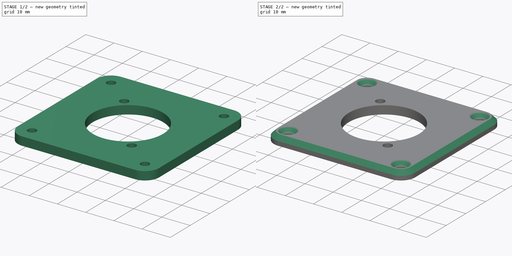
[diagram: build sequence overview — one tinted view per stage of 2, left to right]
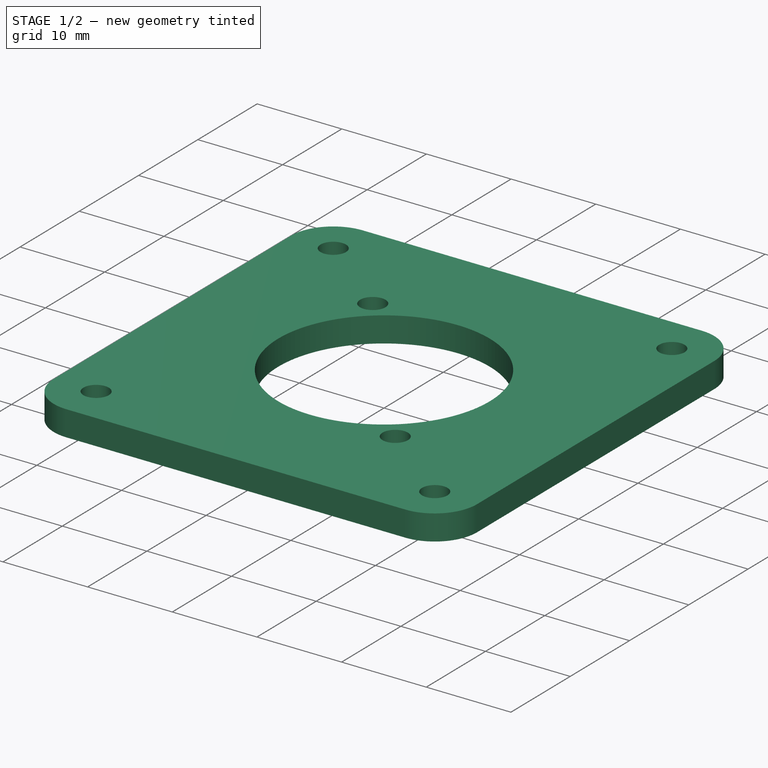
[diagram: stage 1 of 2 — iso view after this stage's code; geometry added in this stage tinted green]
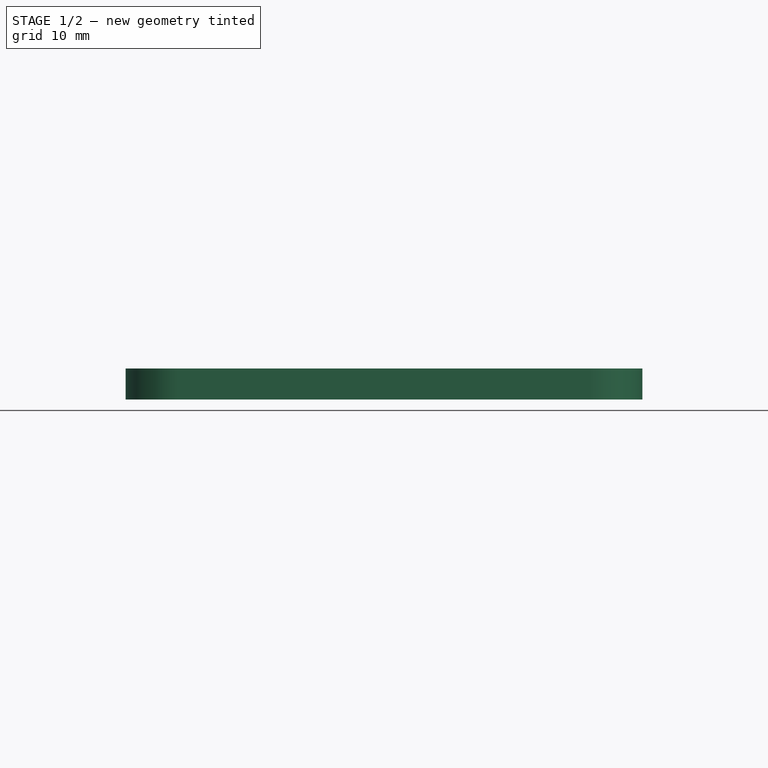
[diagram: stage 1 of 2 — front view after this stage's code; geometry added in this stage tinted green]
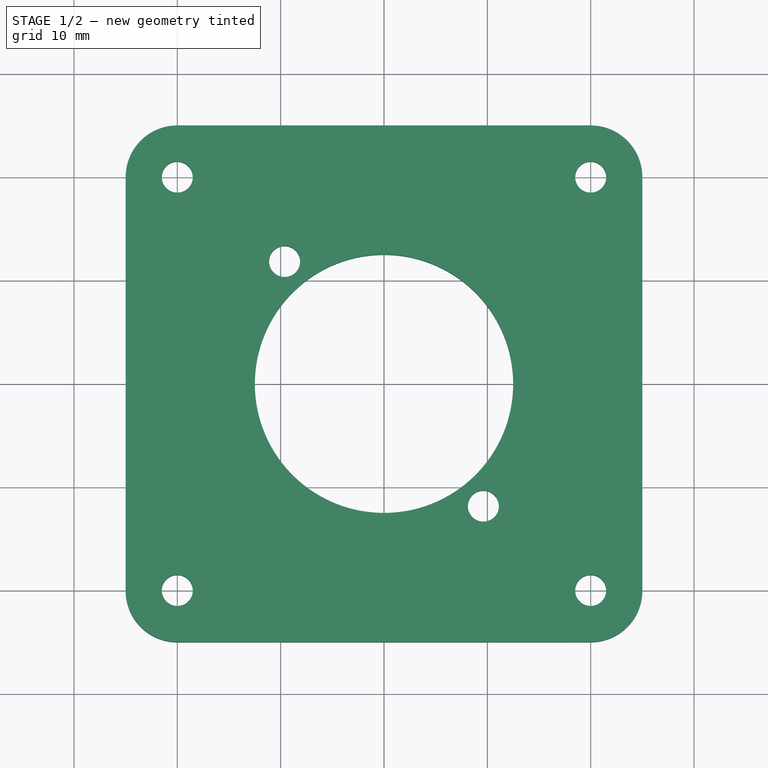
[diagram: stage 1 of 2 — top view after this stage's code; geometry added in this stage tinted green]
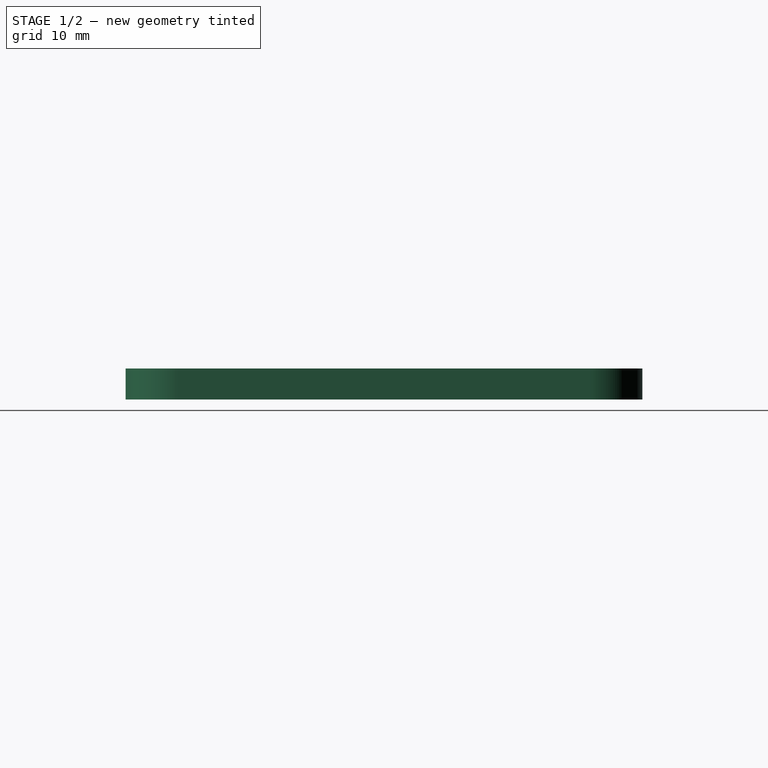
[diagram: stage 1 of 2 — right view after this stage's code; geometry added in this stage tinted green]
FCSTD DOCUMENT  (FreeCAD 0.19R23141 (Git))
Label: ethernet_panel
License: All rights reserved
LicenseURL: http://en.wikipedia.org/wiki/All_rights_reserved
objects: Sketcher::SketchObject×1, PartDesign::Pad×1, PartDesign::Chamfer×1, PartDesign::Body×1
note: 6 computed .brp shape members not serialized (recipe doc carries the construction recipe); baked Part::Feature solids carry a one-line shape summary decoded from their .brp

FEATURE [Sketcher::SketchObject] Sketch
  MapMode = 5
  Support = -> [XY_Plane]
  sketch-geometry (29):
    g0: Circle [constr] CenterX=0 CenterY=0 CenterZ=0 NormalX=0 NormalY=0 NormalZ=1 AngleXU=0 Radius=20
    g1: LineSegment [constr] StartX=-13 StartY=16 StartZ=0 EndX=13 EndY=16 EndZ=0
    g2: LineSegment [constr] StartX=13 StartY=16 StartZ=0 EndX=13 EndY=-16 EndZ=0
    g3: LineSegment [constr] StartX=13 StartY=-16 StartZ=0 EndX=-13 EndY=-16 EndZ=0
    g4: LineSegment [constr] StartX=-13 StartY=-16 StartZ=0 EndX=-13 EndY=16 EndZ=0
    g5: LineSegment [constr] StartX=-13 StartY=16 StartZ=0 EndX=-1.8e-15 EndY=0 EndZ=0
    g6: LineSegment [constr] StartX=13 StartY=16 StartZ=0 EndX=0 EndY=0 EndZ=0
    g7: LineSegment [constr] StartX=0 StartY=0 StartZ=0 EndX=-13 EndY=-16 EndZ=0
    g8: LineSegment [constr] StartX=0 StartY=0 StartZ=0 EndX=13 EndY=-16 EndZ=0
    g9: LineSegment [constr] StartX=0 StartY=0 StartZ=0 EndX=9.61654 EndY=-11.8357 EndZ=0
    g10: LineSegment [constr] StartX=0 StartY=0 StartZ=0 EndX=-9.61654 EndY=11.8357 EndZ=0
    g11: Circle CenterX=-9.61654 CenterY=11.8357 CenterZ=0 NormalX=0 NormalY=0 NormalZ=1 AngleXU=0 Radius=1.5
    g12: Circle CenterX=9.61654 CenterY=-11.8357 CenterZ=0 NormalX=0 NormalY=0 NormalZ=1 AngleXU=0 Radius=1.5
    g13: LineSegment StartX=-20 StartY=25 StartZ=0 EndX=20 EndY=25 EndZ=0
    g14: LineSegment StartX=25 StartY=20 StartZ=0 EndX=25 EndY=-20 EndZ=0
    g15: LineSegment StartX=20 StartY=-25 StartZ=0 EndX=-20 EndY=-25 EndZ=0
    g16: LineSegment StartX=-25 StartY=-20 StartZ=0 EndX=-25 EndY=20 EndZ=0
    g17: ArcOfCircle CenterX=-20 CenterY=20 CenterZ=0 NormalX=0 NormalY=0 NormalZ=1 AngleXU=0 Radius=5 StartAngle=1.5708 EndAngle=3.14159
    g18: ArcOfCircle CenterX=20 CenterY=20 CenterZ=0 NormalX=0 NormalY=0 NormalZ=1 AngleXU=0 Radius=5 StartAngle=0 EndAngle=1.5708
    g19: ArcOfCircle CenterX=20 CenterY=-20 CenterZ=0 NormalX=0 NormalY=0 NormalZ=1 AngleXU=0 Radius=5 StartAngle=4.71239 EndAngle=6.28319
    g20: ArcOfCircle CenterX=-20 CenterY=-20 CenterZ=0 NormalX=0 NormalY=0 NormalZ=1 AngleXU=0 Radius=5 StartAngle=3.14159 EndAngle=4.71239
    g21: Circle CenterX=-20 CenterY=20 CenterZ=0 NormalX=0 NormalY=0 NormalZ=1 AngleXU=0 Radius=1.5
    g22: Circle CenterX=20 CenterY=20 CenterZ=0 NormalX=0 NormalY=0 NormalZ=1 AngleXU=0 Radius=1.5
    g23: Circle CenterX=20 CenterY=-20 CenterZ=0 NormalX=0 NormalY=0 NormalZ=1 AngleXU=0 Radius=1.5
    g24: Circle CenterX=-20 CenterY=-20 CenterZ=0 NormalX=0 NormalY=0 NormalZ=1 AngleXU=0 Radius=1.5
    g25: LineSegment [constr] StartX=-20 StartY=20 StartZ=0 EndX=0 EndY=0 EndZ=0
    g26: LineSegment [constr] StartX=0 StartY=0 StartZ=0 EndX=20 EndY=20 EndZ=0
    g27: LineSegment [constr] StartX=0 StartY=0 StartZ=0 EndX=-20 EndY=-20 EndZ=0
    g28: Circle CenterX=0 CenterY=0 CenterZ=0 NormalX=0 NormalY=0 NormalZ=1 AngleXU=0 Radius=12.5
  constraints (68):
    c: Coincident(g0,g-1)
    c: Diameter(g0) = 40
    c: Coincident(g1,g2)
    c: Coincident(g2,g3)
    c: Coincident(g3,g4)
    c: Coincident(g4,g1)
    c: Horizontal(g1)
    c: Horizontal(g3)
    c: Vertical(g2)
    c: Vertical(g4)
    c: DistanceX(g1,g1) = 26
    c: DistanceY(g4,g4) = 32
    c: Coincident(g5,g1)
    c: Coincident(g5,g-1)
    c: Coincident(g6,g1)
    c: Coincident(g6,g-1)
    c: Coincident(g7,g-1)
    c: Coincident(g7,g3)
    c: Equal(g7,g5)
    c: Equal(g5,g6)
    c: Coincident(g8,g-1)
    c: Coincident(g8,g2)
    c: Coincident(g9,g-1)
    c: PointOnObject(g9,g8)
    c: Coincident(g10,g-1)
    c: PointOnObject(g10,g5)
    c: Equal(g9,g10)
    c: Distance(g10,g9) = 30.5
    c: Coincident(g11,g10)
    c: Coincident(g12,g9)
    c: Diameter(g12) = 3
    c: Equal(g12,g11)
    c: Horizontal(g13)
    c: Horizontal(g15)
    c: Vertical(g14)
    c: Vertical(g16)
    c: Tangent(g16,g17) = 1.5708
    c: Tangent(g13,g17) = 1.5708
    c: Tangent(g13,g18) = 1.5708
    c: Tangent(g14,g18) = 1.5708
    c: Tangent(g14,g19) = 1.5708
    c: Tangent(g15,g19) = 1.5708
    c: Tangent(g15,g20) = 1.5708
    c: Tangent(g16,g20) = 1.5708
    c: Equal(g13,g16)
    c: Equal(g17,g18)
    c: Equal(g18,g19)
    c: Equal(g19,g20)
    c: Radius(g17) = 5
    c: Coincident(g21,g17)
    c: Coincident(g22,g18)
    c: Coincident(g23,g19)
    c: Coincident(g24,g20)
    c: Diameter(g21) = 3
    c: Equal(g21,g24)
    c: Equal(g21,g22)
    c: Equal(g21,g23)
    c: Coincident(g25,g17)
    c: Coincident(g25,g-1)
    c: Coincident(g25,g26)
    c: Coincident(g26,g18)
    c: Coincident(g-1,g27)
    c: Coincident(g27,g20)
    c: Equal(g26,g25)
    c: Equal(g25,g27)
    c: DistanceX(g16,g14) = 50
    c: Coincident(g28,g-1)
    c: Diameter(g28) = 25
FEATURE [PartDesign::Pad] Pad
  Direction = (1,1,1)
  Length = 3
  Length2 = 100
  Profile = -> Sketch
  Type = 0
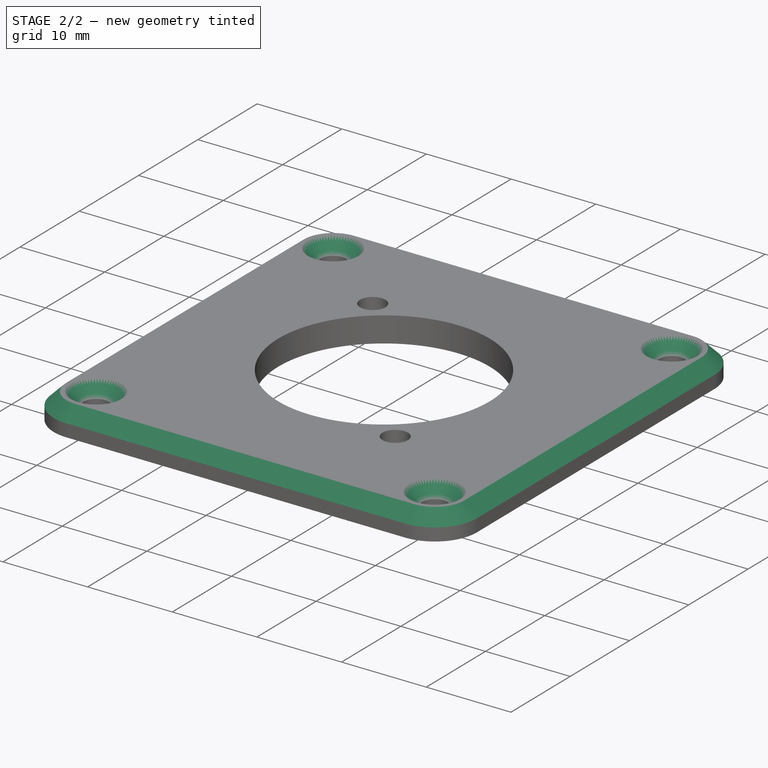
[diagram: stage 2 of 2 — iso view after this stage's code; geometry added in this stage tinted green]
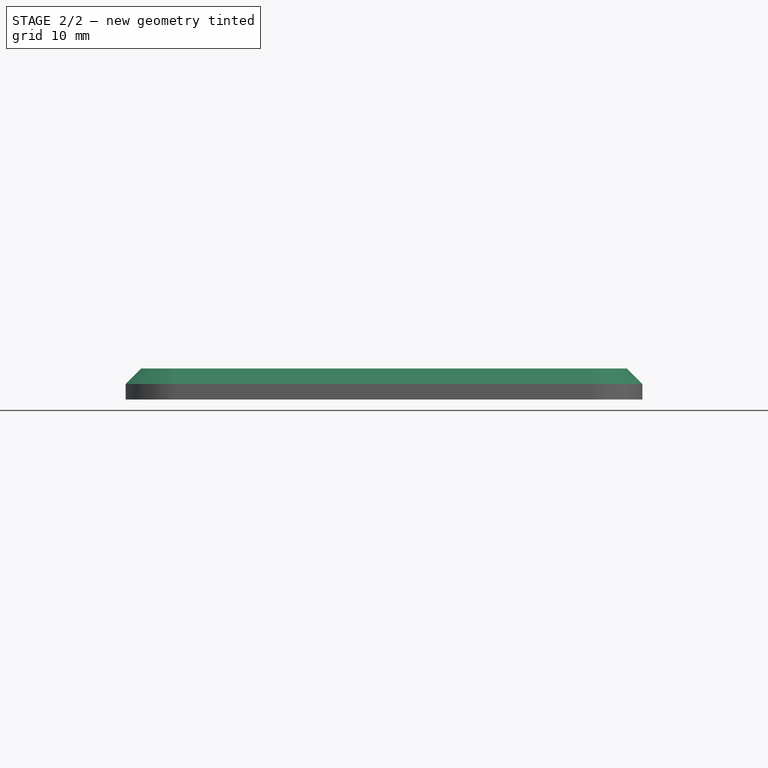
[diagram: stage 2 of 2 — front view after this stage's code; geometry added in this stage tinted green]
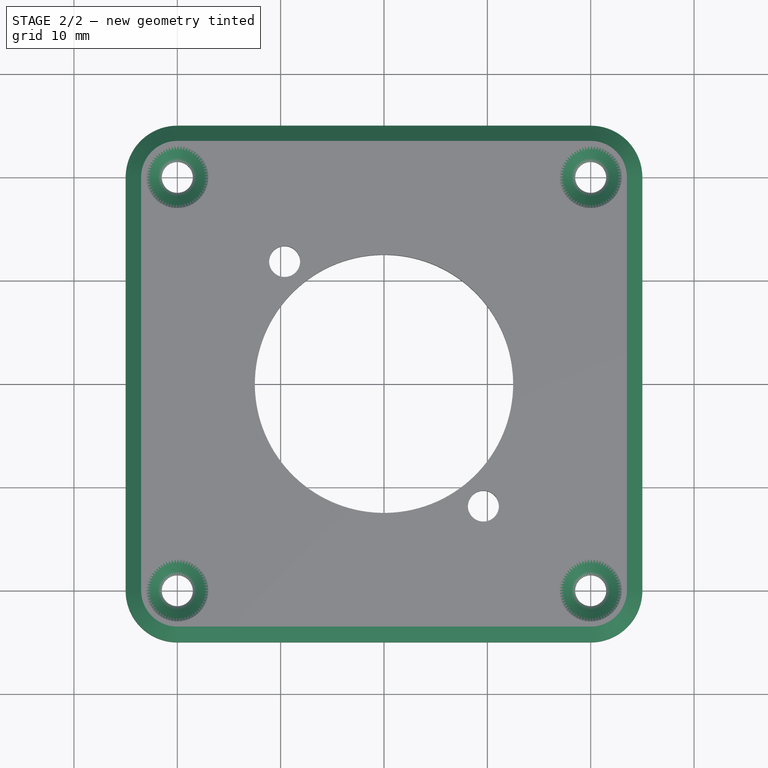
[diagram: stage 2 of 2 — top view after this stage's code; geometry added in this stage tinted green]
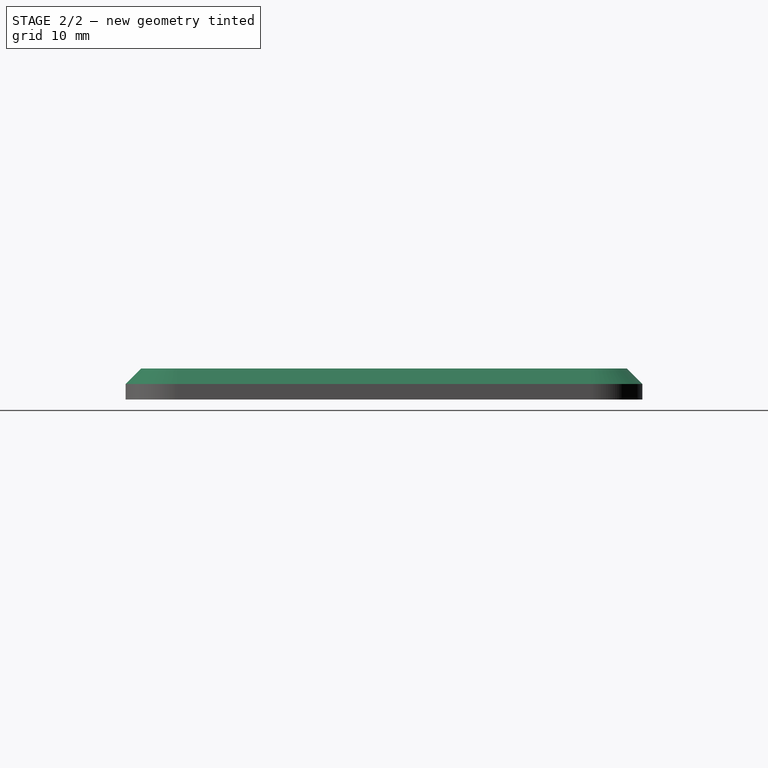
[diagram: stage 2 of 2 — right view after this stage's code; geometry added in this stage tinted green]
FEATURE [PartDesign::Chamfer] Chamfer
  Angle = 45
  Base = -> Pad [Edge10,Edge39,Edge36,Edge33,Edge30]
  BaseFeature = -> Pad
  ChamferType = 0
  FlipDirection = false
  Size = 1.5
  Size2 = 1
  SupportTransform = false
FEATURE [PartDesign::Body] Body
  Group = -> [Sketch,Pad,Chamfer]
  Origin = -> Origin
  Tip = -> Chamfer
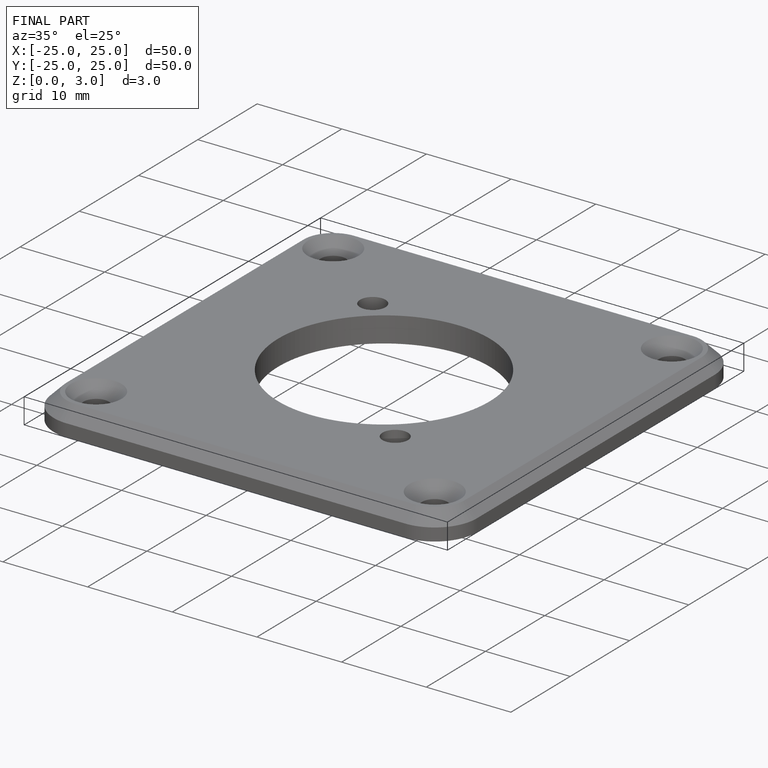
[diagram: finished part — iso view with bounding-box wireframe]
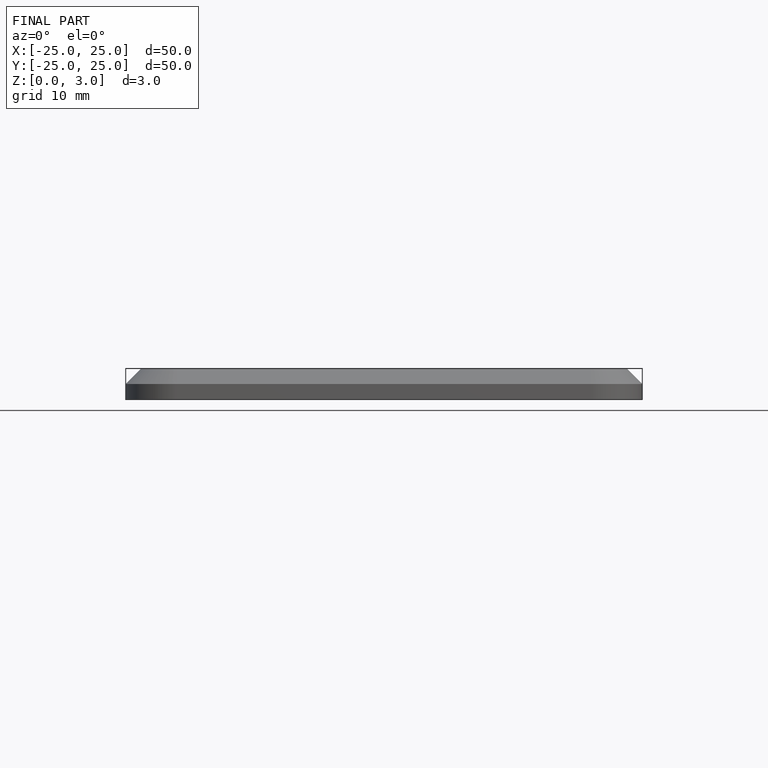
[diagram: finished part — front view with bounding-box wireframe]
